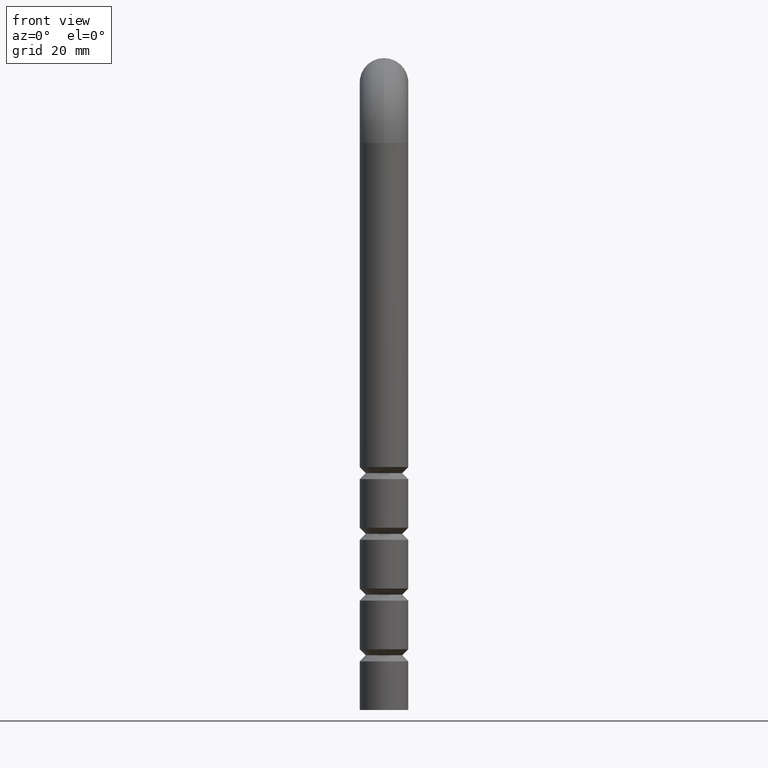
[diagram: clean part render]
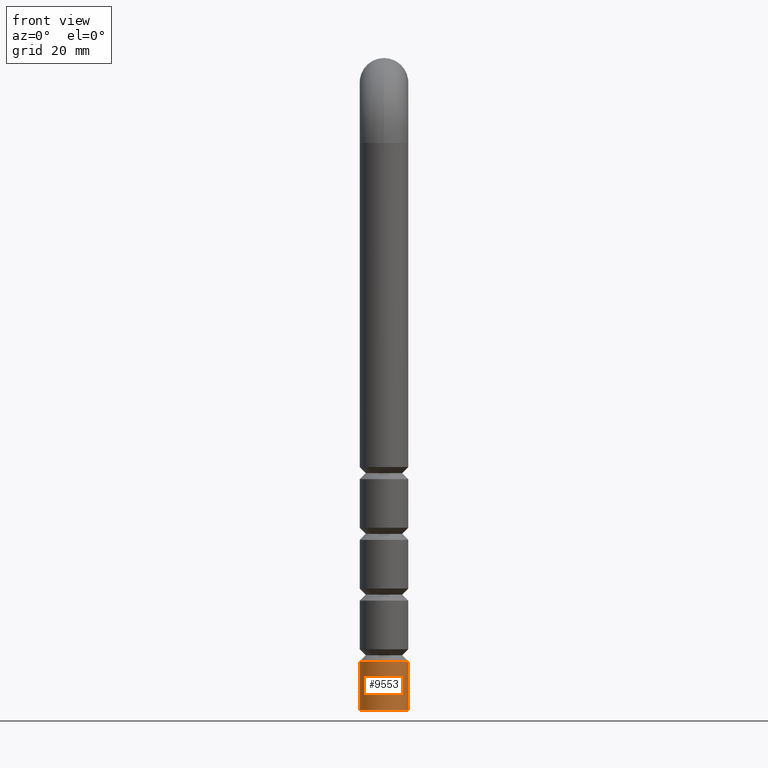
[diagram: same view with one face highlighted and labeled with its STEP entity id]
A machine part, front view. The second image highlights one B-rep face of the part: STEP entity #9553.
In plain terms, the highlighted cylindrical surface (edge-blend (fillet) strip) has radius 6 mm, axis along (0, 0, -1).
Its self-contained STEP definition (entity closure, byte-faithful):
#609 = AXIS2_PLACEMENT_3D ( 'NONE', #6771, #7789, #7881 ) ;
#758 = CARTESIAN_POINT ( 'NONE',  ( -6.000000000000000888, 0.000000000000000000, 140.0000000000000000 ) ) ;
#983 = CARTESIAN_POINT ( 'NONE',  ( 0.000000000000000000, 0.000000000000000000, 12.00000000000000000 ) ) ;
#1087 = CARTESIAN_POINT ( 'NONE',  ( 0.000000000000000000, 0.000000000000000000, 140.0000000000000000 ) ) ;
#1292 = DIRECTION ( 'NONE',  ( -1.000000000000000000, 0.000000000000000000, 0.000000000000000000 ) ) ;
#1775 = DIRECTION ( 'NONE',  ( 0.000000000000000000, 0.000000000000000000, -1.000000000000000000 ) ) ;
#2362 = CARTESIAN_POINT ( 'NONE',  ( -6.000000000000000888, 0.000000000000000000, 0.000000000000000000 ) ) ;
#2954 = DIRECTION ( 'NONE',  ( -0.000000000000000000, -0.000000000000000000, -1.000000000000000000 ) ) ;
#3258 = CIRCLE ( 'NONE', #609, 6.000000000000000888 ) ;
#3398 = DIRECTION ( 'NONE',  ( 0.000000000000000000, 0.000000000000000000, -1.000000000000000000 ) ) ;
#3416 = VERTEX_POINT ( 'NONE', #6833 ) ;
#3421 = EDGE_CURVE ( 'NONE', #11968, #3416, #9370, .T. ) ;
#3753 = EDGE_LOOP ( 'NONE', ( #11663, #4521, #4637, #12973 ) ) ;
#4521 = ORIENTED_EDGE ( 'NONE', *, *, #3421, .T. ) ;
#4604 = CARTESIAN_POINT ( 'NONE',  ( 6.000000000000000888, 7.347880794884120722E-16, 0.000000000000000000 ) ) ;
#4622 = EDGE_CURVE ( 'NONE', #12239, #4887, #3258, .T. ) ;
#4637 = ORIENTED_EDGE ( 'NONE', *, *, #4672, .T. ) ;
#4672 = EDGE_CURVE ( 'NONE', #3416, #12239, #8831, .T. ) ;
#4887 = VERTEX_POINT ( 'NONE', #4604 ) ;
#5623 = DIRECTION ( 'NONE',  ( 0.000000000000000000, 0.000000000000000000, -1.000000000000000000 ) ) ;
#5773 = LINE ( 'NONE', #8728, #11844 ) ;
#6200 = AXIS2_PLACEMENT_3D ( 'NONE', #983, #2954, #9051 ) ;
#6771 = CARTESIAN_POINT ( 'NONE',  ( 0.000000000000000000, 0.000000000000000000, 0.000000000000000000 ) ) ;
#6833 = CARTESIAN_POINT ( 'NONE',  ( -6.000000000000000000, 0.000000000000000000, 12.00000000000000000 ) ) ;
#6936 = CARTESIAN_POINT ( 'NONE',  ( 6.000000000000000000, 7.347880794884119736E-16, 12.00000000000000000 ) ) ;
#7319 = AXIS2_PLACEMENT_3D ( 'NONE', #1087, #3398, #1292 ) ;
#7789 = DIRECTION ( 'NONE',  ( 0.000000000000000000, 0.000000000000000000, 1.000000000000000000 ) ) ;
#7881 = DIRECTION ( 'NONE',  ( 1.000000000000000000, 0.000000000000000000, 0.000000000000000000 ) ) ;
#8728 = CARTESIAN_POINT ( 'NONE',  ( 6.000000000000000888, 7.347880794884120722E-16, 140.0000000000000000 ) ) ;
#8831 = LINE ( 'NONE', #758, #9299 ) ;
#9051 = DIRECTION ( 'NONE',  ( -1.000000000000000000, 0.000000000000000000, 0.000000000000000000 ) ) ;
#9299 = VECTOR ( 'NONE', #1775, 1000.000000000000000 ) ;
#9370 = CIRCLE ( 'NONE', #6200, 6.000000000000000000 ) ;
#9553 = ADVANCED_FACE ( 'NONE', ( #12609 ), #12776, .T. ) ;
#11663 = ORIENTED_EDGE ( 'NONE', *, *, #12397, .F. ) ;
#11844 = VECTOR ( 'NONE', #5623, 1000.000000000000000 ) ;
#11968 = VERTEX_POINT ( 'NONE', #6936 ) ;
#12239 = VERTEX_POINT ( 'NONE', #2362 ) ;
#12397 = EDGE_CURVE ( 'NONE', #11968, #4887, #5773, .T. ) ;
#12609 = FACE_OUTER_BOUND ( 'NONE', #3753, .T. ) ;
#12776 = CYLINDRICAL_SURFACE ( 'NONE', #7319, 6.000000000000000888 ) ;
#12973 = ORIENTED_EDGE ( 'NONE', *, *, #4622, .T. ) ;